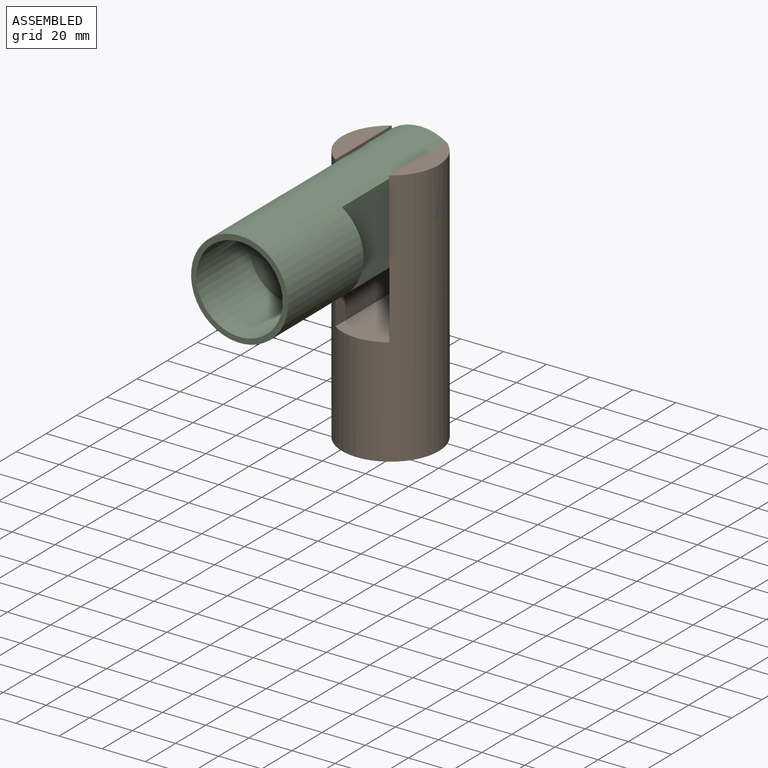
[diagram: assembled view]
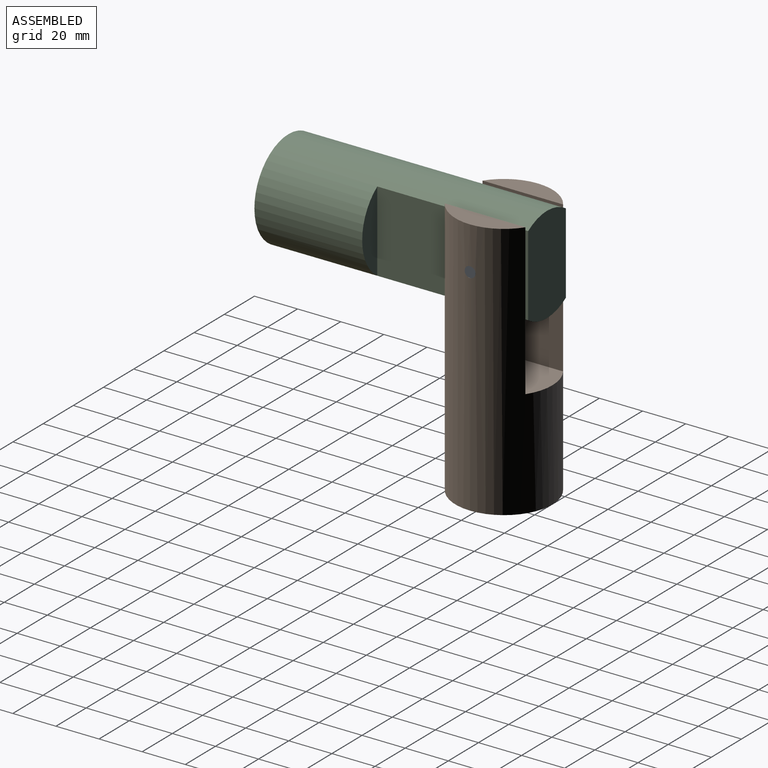
[diagram: assembled view, second angle]
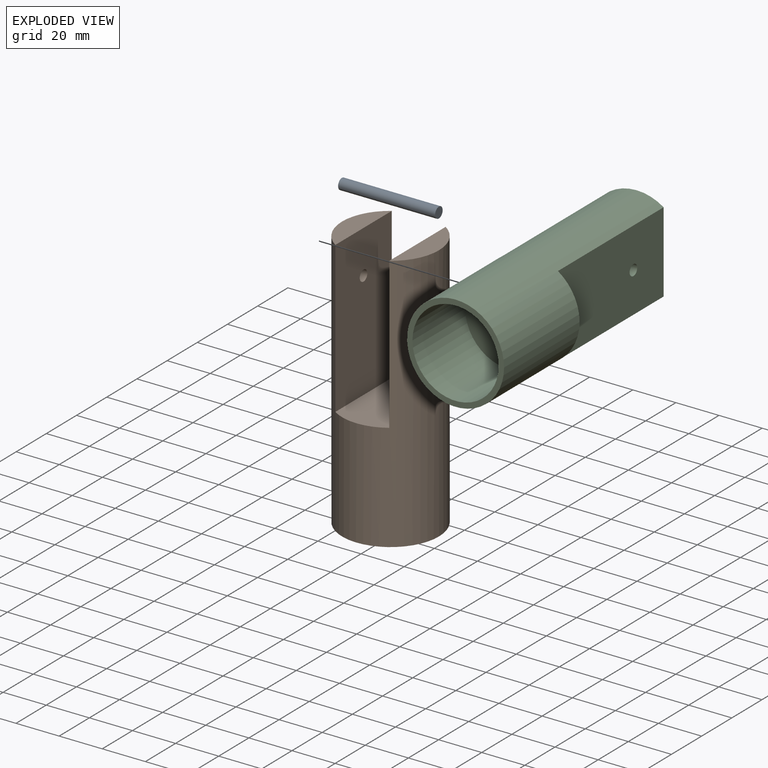
[diagram: exploded view]
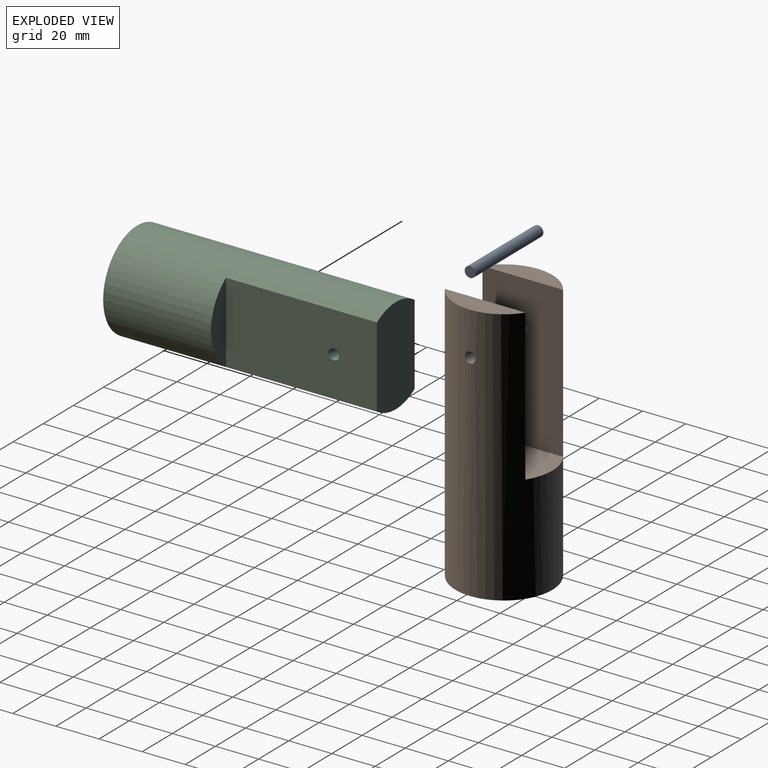
[diagram: exploded view, second angle]
ASSEMBLY  parts=3 mates=2
PART A: 3 faces, bbox 5x5x45 mm
  f0: cylinder r=2.5mm len=45mm, axis (0,0,-1), area 706.9mm2, adj f1,f2
  f1: plane 5x5mm, normal (0,0,1), area 19.6mm2, adj f0
  f2: plane 5x5mm, normal (0,0,-1), area 19.6mm2, adj f0
PART B: 11 faces, bbox 45x45x120 mm
  f0: cylinder r=22.5mm len=120mm, axis (0,0,-1), area 13214.5mm2, adj f1,f2,f3,f4,f5,f6,f9,f10
  f1: plane 37.42x10mm, normal (0,0,1), area 263.2mm2, adj f0,f4
  f2: plane 37.42x10mm, normal (0,0,1), area 263.2mm2, adj f0,f5
  f3: plane 45x45mm, normal (0,0,-1), area 333.8mm2, adj f0,f7
  f4: plane 70x37.42mm, normal (-1,0,0), area 2599.5mm2, adj f0,f1,f6,f10
  f5: plane 70x37.42mm, normal (1,0,0), area 2599.5mm2, adj f0,f2,f6,f9
  f6: plane 45x25mm, normal (0,0,1), area 1064.1mm2, adj f0,f4,f5
  f7: cylinder r=20mm len=40mm, axis (0,0,-1), area 4398.2mm2, adj f3,f8
  f8: plane 40x40mm, normal (0,0,-1), area 1256.6mm2, adj f7
  f9: cylinder r=2.5mm len=10mm, axis (1,0,0), area 156mm2, adj f0,f5
  f10: cylinder r=2.5mm len=10mm, axis (1,0,0), area 156mm2, adj f0,f4
PART C: 10 faces, bbox 45x45x120 mm
  f0: plane 45x25mm, normal (0,0,1), area 1064.1mm2, adj f1,f3,f5
  f1: cylinder r=22.5mm len=120mm, axis (0,0,-1), area 10779.5mm2, adj f0,f2,f3,f4,f5,f6
  f2: plane 45x45mm, normal (0,0,-1), area 333.8mm2, adj f1,f7
  f3: plane 70x37.42mm, normal (1,0,0), area 2599.5mm2, adj f0,f1,f4,f9
  f4: plane 37.42x10mm, normal (0,0,1), area 263.2mm2, adj f1,f3
  f5: plane 70x37.42mm, normal (-1,0,0), area 2599.5mm2, adj f0,f1,f6,f9
  f6: plane 37.42x10mm, normal (0,0,1), area 263.2mm2, adj f1,f5
  f7: cylinder r=20mm len=40mm, axis (0,0,-1), area 4398.2mm2, adj f2,f8
  f8: plane 40x40mm, normal (0,0,-1), area 1256.6mm2, adj f7
  f9: cylinder r=2.5mm len=25mm, axis (1,0,0), area 392.7mm2, adj f3,f5
PLACE A rot(axis=(0,1,0),90deg) t=(33.56,-34.92,49.95)mm
PLACE B t=(56.12,-34.92,-50.05)mm fixed
PLACE C rot(axis=(-1,0,0),90deg) t=(56.12,-134.92,49.95)mm
MATE revolute B.f9 <-> C.f9  axis (1,0,0) through (43.62,-34.92,49.95)mm
MATE fastened B.f9 <-> A.f0  axis (1,0,0) through (33.56,-34.92,49.95)mm
